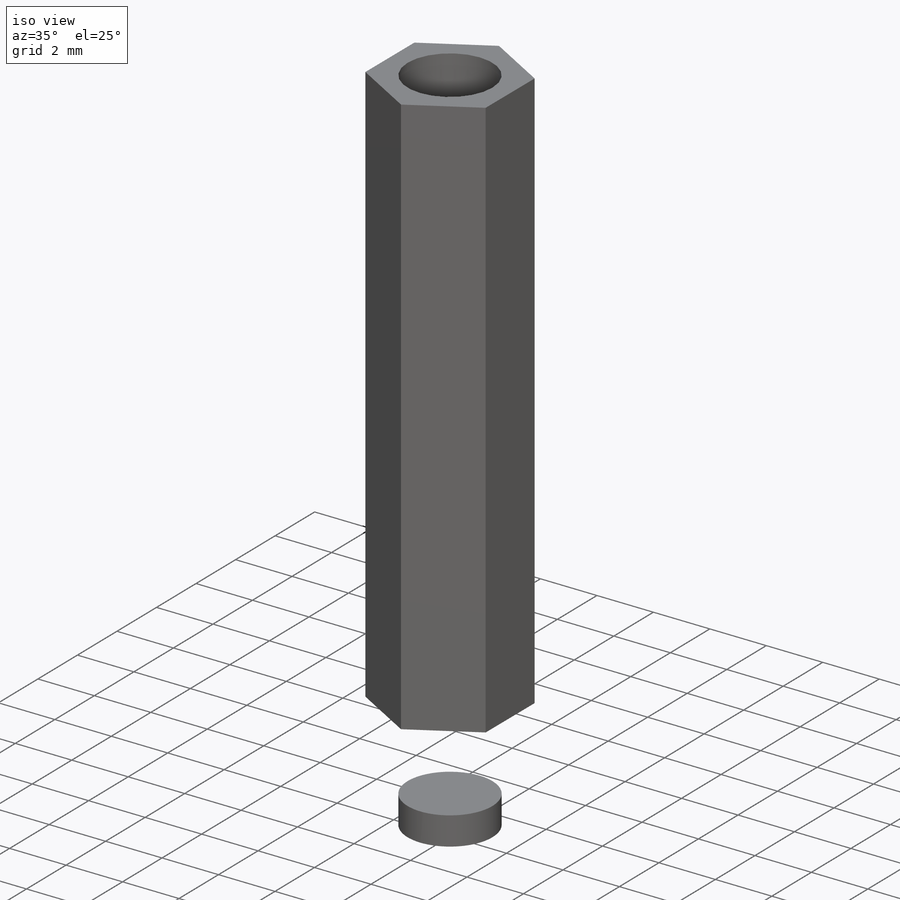
[diagram: iso view]
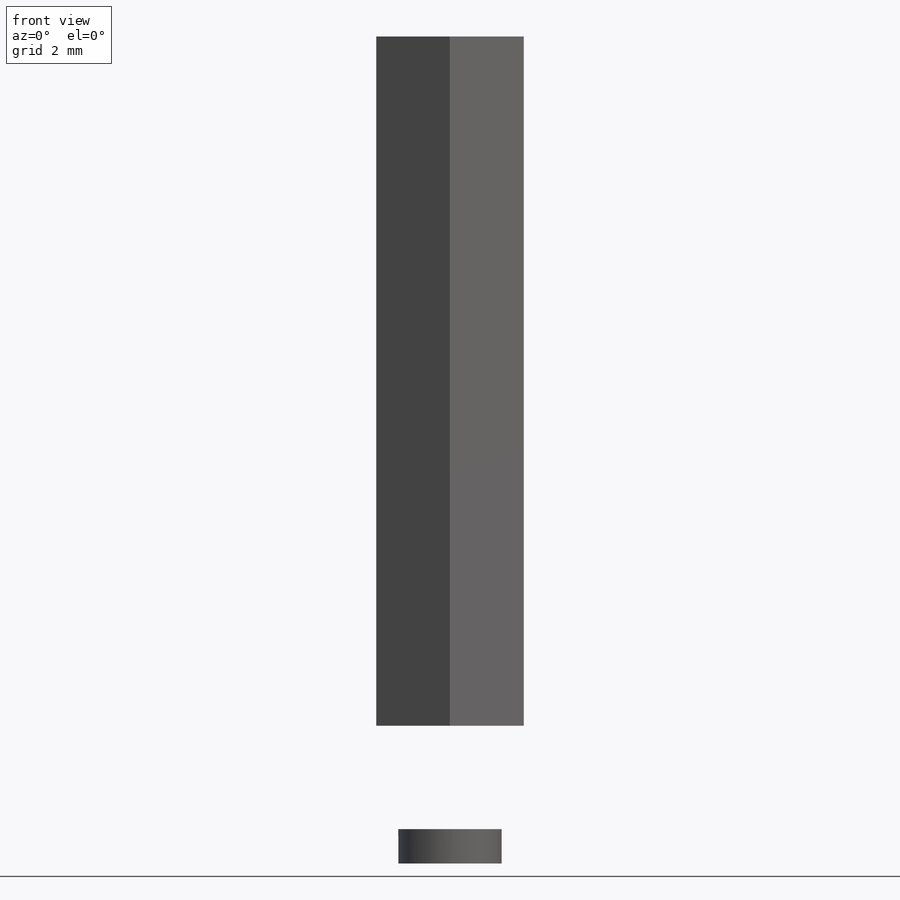
[diagram: front view]
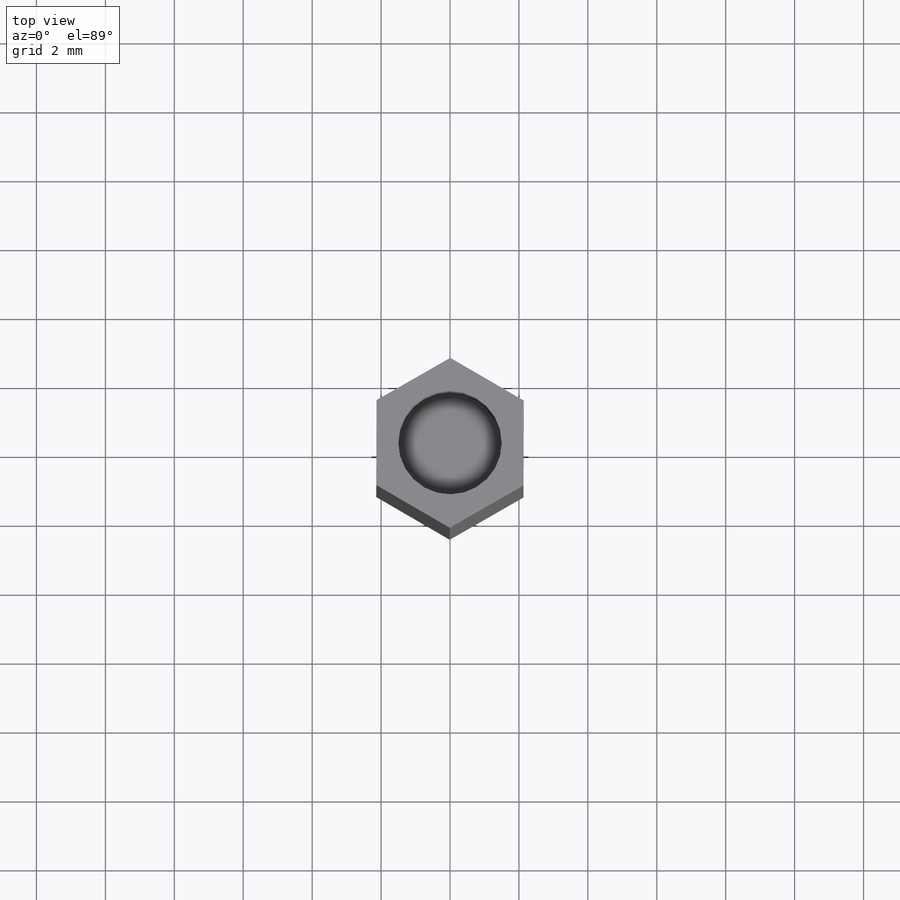
[diagram: top view]
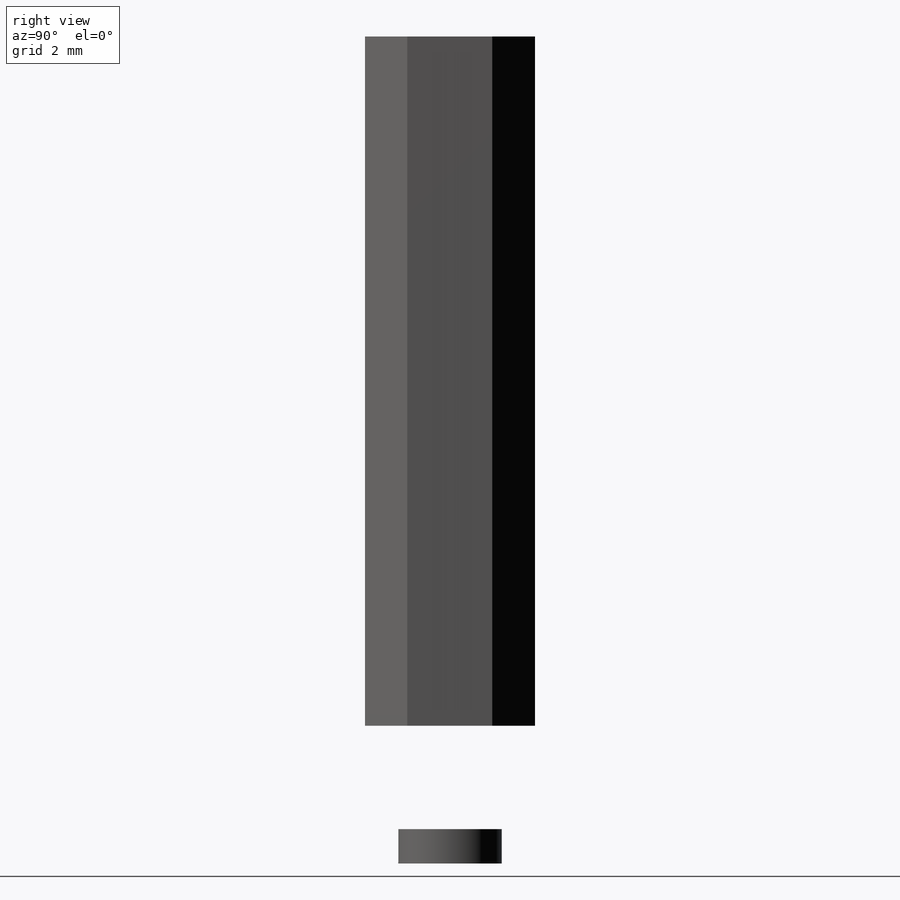
[diagram: right view]
SOLIDWORKS PART (.sldprt)
format: sldprt  version: not decoded by parser v0  size: 138,752 bytes
history: native  units: mm
features: sketch x4, plane x3, extrude x2, material x1, cut_extrude x1 (+13 scaffold rows collapsed)
feature tree (24):
  scaffold x13  (default folders/planes/origin — collapsed)
  material  "Matériau <non spécifié>"
  plane  "Plan de face"
  plane  "Plan de dessus"
  plane  "Plan de droite"
  sketch  "Esquisse1"  dims[D1=3.0mm]
  extrude  "Boss.-Extru.1"  Depth=4mm
  sketch  "Esquisse2"
  extrude  "Boss.-Extru.2"  Depth=20mm
  sketch  "Esquisse3"  dims[D1=3.0mm]
  cut_extrude  "Enlèv. mat.-Extru.1"  Depth=4mm
  sketch  "Esquisse4"  dims[c1.D1=3.0mm c1.D2=3.0mm c1.D3=3.0mm c1.D5=3.0mm c1.D6=3.0mm c1.D7=3.0mm c2.D3=4.0mm c2.D4=4.0mm c2.D8=4.0mm c2.D9=~5.235368mm c3.D9=90.0deg c4.D9=4.0mm c4.D10=4.0mm c4.D11=4.0mm c4.D12=4.0mm c4.D13=4.0mm c4.D1=3.0mm]
decode coverage: 6 of 7 modeling features carry decoded parameters
note: ~ marks probable driven/reference dimensions
note: suppression state not decoded; provenance and decode notes live in map.json
